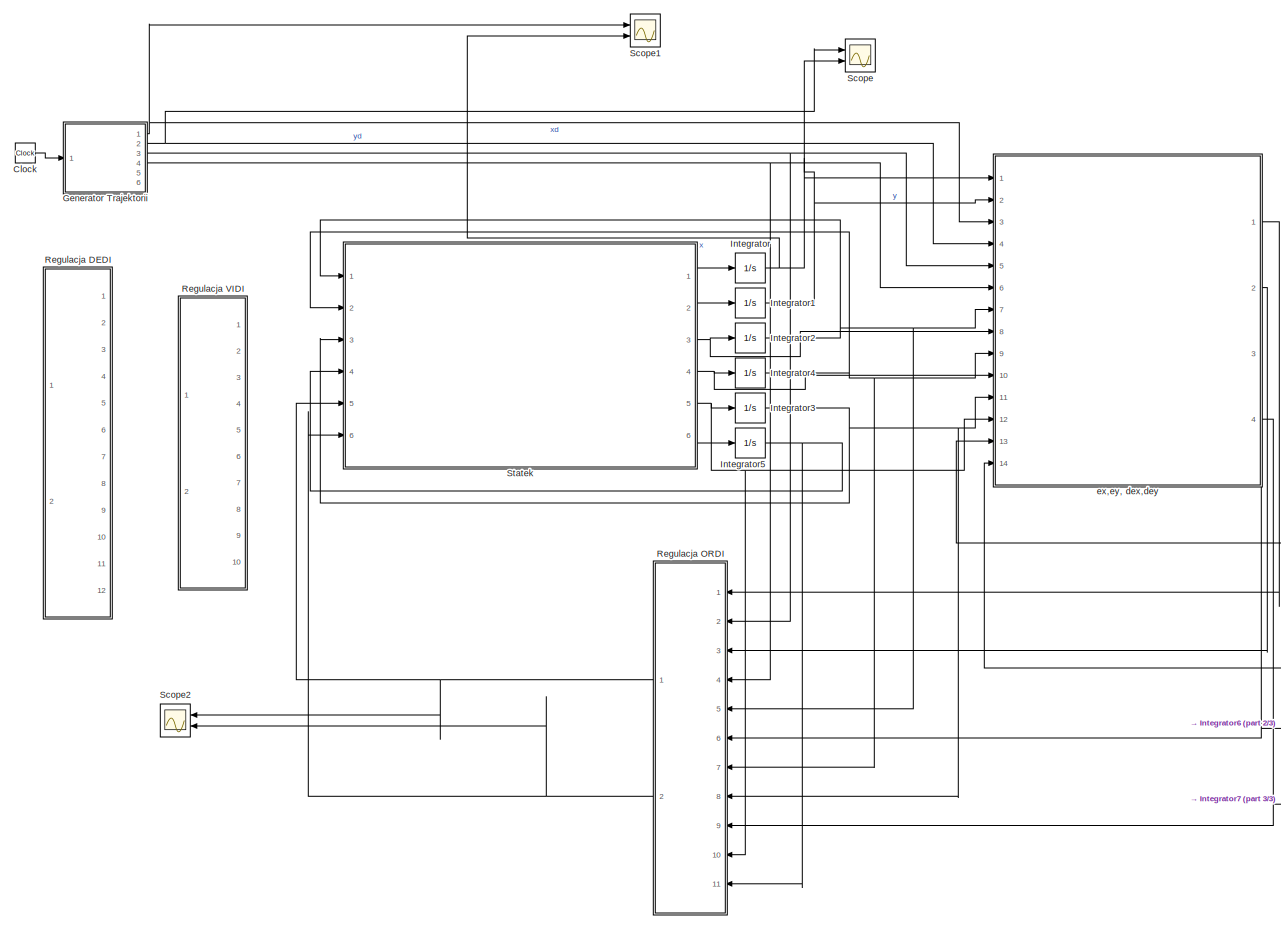
[diagram: root canvas - part 1/3, most of the canvas]
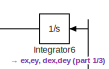
[diagram: root canvas - part 2/3, middle right region]
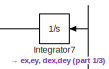
[diagram: root canvas - part 3/3, bottom right region]
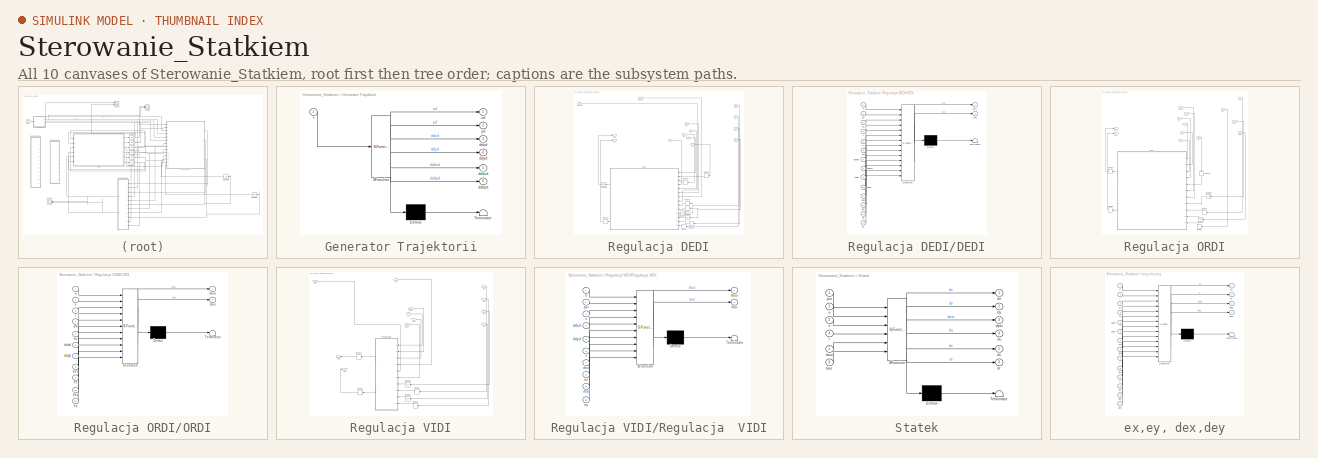
[diagram: thumbnail index - all 10 canvases of the model, root first then tree order]
MODEL Sterowanie_Statkiem
KIND model
BLOCK [Clock] Clock
  SID = 28
BLOCK [SubSystem] Generator Trajektorii
  ErrorFcn = Stateflow.Translate.translate
  PermitHierarchicalResolution = ExplicitOnly
  Ports = [1, 6]
  RequestExecContextInheritance = off
  SFBlockType = MATLAB Function
  SID = 27
  TreatAsAtomicUnit = on
BLOCK [Demux] Generator Trajektorii/ Demux 
  Outputs = 1
  Ports = [1, 1]
  SID = 27::20
BLOCK [S-Function] Generator Trajektorii/ SFunction 
  EnableBusSupport = on
  FunctionName = sf_sfun
  PortCounts = [1 7]
  Ports = [1, 7]
  SFcnIsStateOwnerBlock = off
  SFunctionDeploymentMode = off
  SID = 27::19
  Tag = Stateflow S-Function 1
BLOCK [Terminator] Generator Trajektorii/ Terminator 
  SID = 27::21
BLOCK [Outport] Generator Trajektorii/dddxd
  IconDisplay = Port number
  Port = 5
  SID = 27::27
BLOCK [Outport] Generator Trajektorii/dddyd
  IconDisplay = Port number
  Port = 6
  SID = 27::28
BLOCK [Outport] Generator Trajektorii/ddxd
  IconDisplay = Port number
  Port = 3
  SID = 27::23
BLOCK [Outport] Generator Trajektorii/ddyd
  IconDisplay = Port number
  Port = 4
  SID = 27::24
BLOCK [Inport] Generator Trajektorii/t
  IconDisplay = Port number
  SID = 27::1
BLOCK [Outport] Generator Trajektorii/xd
  IconDisplay = Port number
  SID = 27::5
BLOCK [Outport] Generator Trajektorii/yd
  IconDisplay = Port number
  Port = 2
  SID = 27::22
BLOCK [Integrator] Integrator
  InitialCondition = -0.01
  Ports = [1, 1]
  SID = 16
BLOCK [Integrator] Integrator1
  InitialCondition = 1.01
  Ports = [1, 1]
  SID = 19
BLOCK [Integrator] Integrator2
  InitialCondition = 0.01
  Ports = [1, 1]
  SID = 20
BLOCK [Integrator] Integrator3
  InitialCondition = 0.1
  Ports = [1, 1]
  SID = 21
BLOCK [Integrator] Integrator4
  InitialCondition = .1
  Ports = [1, 1]
  SID = 22
BLOCK [Integrator] Integrator5
  InitialCondition = 0.1
  Ports = [1, 1]
  SID = 23
BLOCK [Integrator] Integrator6
  Ports = [1, 1]
  SID = 149
BLOCK [Integrator] Integrator7
  Ports = [1, 1]
  SID = 150
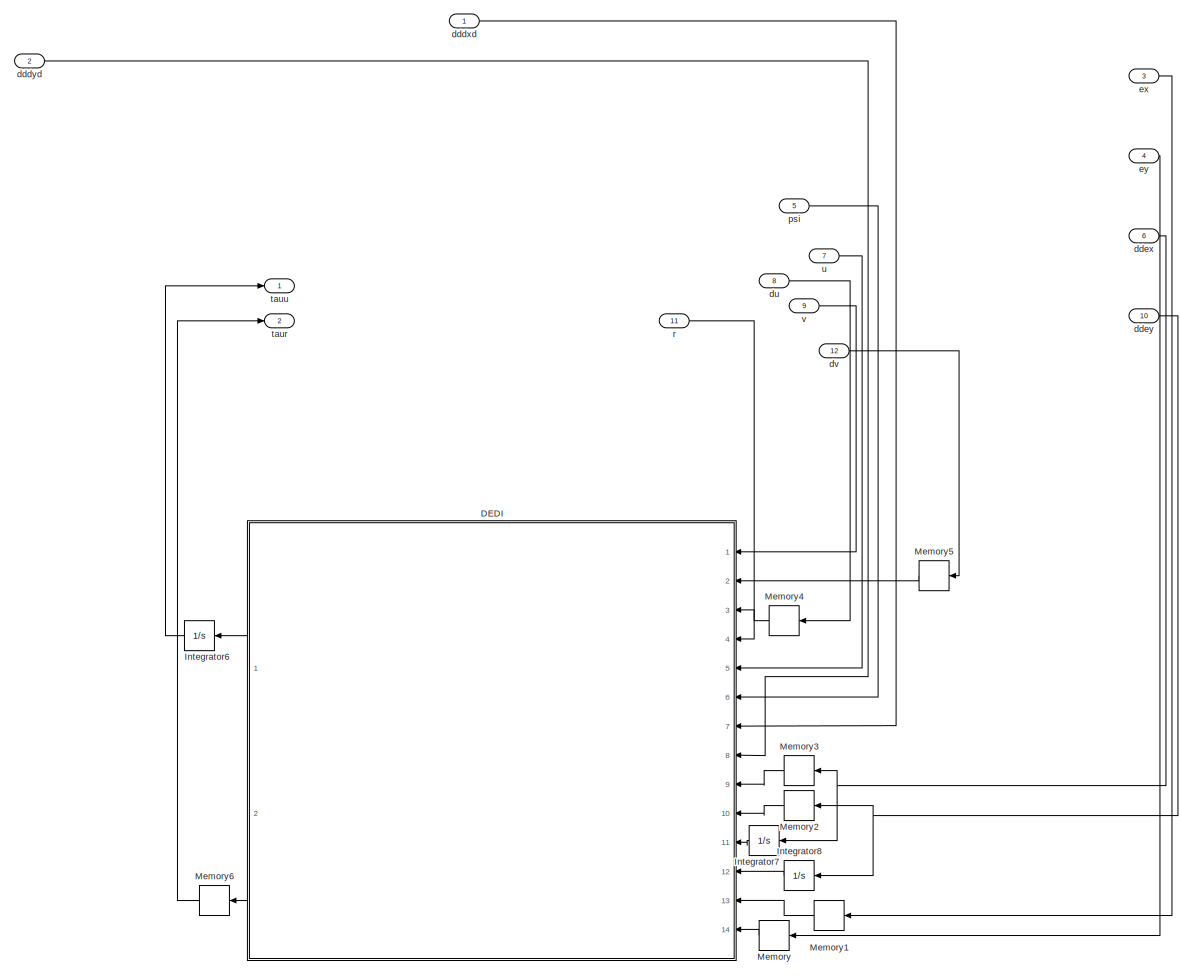
[diagram: Regulacja DEDI - part 1/1, most of the canvas]
BLOCK [SubSystem] Regulacja DEDI
  Commented = on
  Ports = [12, 2]
  RequestExecContextInheritance = off
  SID = 69
BLOCK [SubSystem] Regulacja DEDI/DEDI
  ErrorFcn = Stateflow.Translate.translate
  PermitHierarchicalResolution = ExplicitOnly
  Ports = [14, 2]
  RequestExecContextInheritance = off
  SFBlockType = MATLAB Function
  SID = 36
  TreatAsAtomicUnit = on
BLOCK [Demux] Regulacja DEDI/DEDI/ Demux 
  Outputs = 1
  Ports = [1, 1]
  SID = 36::20
BLOCK [S-Function] Regulacja DEDI/DEDI/ SFunction 
  EnableBusSupport = on
  FunctionName = sf_sfun
  PortCounts = [14 3]
  Ports = [14, 3]
  SFcnIsStateOwnerBlock = off
  SFunctionDeploymentMode = off
  SID = 36::19
  Tag = Stateflow S-Function 4
BLOCK [Terminator] Regulacja DEDI/DEDI/ Terminator 
  SID = 36::21
BLOCK [Inport] Regulacja DEDI/DEDI/dddxd
  IconDisplay = Port number
  Port = 7
  SID = 36::27
BLOCK [Inport] Regulacja DEDI/DEDI/dddyd
  IconDisplay = Port number
  Port = 8
  SID = 36::28
BLOCK [Inport] Regulacja DEDI/DEDI/ddex
  IconDisplay = Port number
  Port = 9
  SID = 36::29
BLOCK [Inport] Regulacja DEDI/DEDI/ddey
  IconDisplay = Port number
  Port = 10
  SID = 36::30
BLOCK [Inport] Regulacja DEDI/DEDI/dex
  IconDisplay = Port number
  Port = 11
  SID = 36::31
BLOCK [Inport] Regulacja DEDI/DEDI/dey
  IconDisplay = Port number
  Port = 12
  SID = 36::32
BLOCK [Inport] Regulacja DEDI/DEDI/du
  IconDisplay = Port number
  Port = 3
  SID = 36::25
BLOCK [Inport] Regulacja DEDI/DEDI/dv
  IconDisplay = Port number
  Port = 2
  SID = 36::24
BLOCK [Inport] Regulacja DEDI/DEDI/ex
  IconDisplay = Port number
  Port = 13
  SID = 36::33
BLOCK [Inport] Regulacja DEDI/DEDI/ey
  IconDisplay = Port number
  Port = 14
  SID = 36::34
BLOCK [Outport] Regulacja DEDI/DEDI/ksiu
  IconDisplay = Port number
  SID = 36::5
BLOCK [Inport] Regulacja DEDI/DEDI/psi
  IconDisplay = Port number
  Port = 6
  SID = 36::26
BLOCK [Inport] Regulacja DEDI/DEDI/r
  IconDisplay = Port number
  Port = 4
  SID = 36::23
BLOCK [Outport] Regulacja DEDI/DEDI/taur
  IconDisplay = Port number
  Port = 2
  SID = 36::35
BLOCK [Inport] Regulacja DEDI/DEDI/u
  IconDisplay = Port number
  Port = 5
  SID = 36::1
BLOCK [Inport] Regulacja DEDI/DEDI/v
  IconDisplay = Port number
  SID = 36::22
BLOCK [Integrator] Regulacja DEDI/Integrator6
  Ports = [1, 1]
  SID = 37
BLOCK [Integrator] Regulacja DEDI/Integrator7
  Ports = [1, 1]
  SID = 38
BLOCK [Integrator] Regulacja DEDI/Integrator8
  Ports = [1, 1]
  SID = 39
BLOCK [Memory] Regulacja DEDI/Memory
  SID = 41
BLOCK [Memory] Regulacja DEDI/Memory1
  SID = 42
BLOCK [Memory] Regulacja DEDI/Memory2
  SID = 43
BLOCK [Memory] Regulacja DEDI/Memory3
  SID = 44
BLOCK [Memory] Regulacja DEDI/Memory4
  SID = 45
BLOCK [Memory] Regulacja DEDI/Memory5
  SID = 46
BLOCK [Memory] Regulacja DEDI/Memory6
  SID = 47
BLOCK [Inport] Regulacja DEDI/dddxd
  IconDisplay = Port number
  SID = 70
BLOCK [Inport] Regulacja DEDI/dddyd
  IconDisplay = Port number
  Port = 2
  SID = 71
BLOCK [Inport] Regulacja DEDI/ddex
  IconDisplay = Port number
  Port = 6
  SID = 75
BLOCK [Inport] Regulacja DEDI/ddey
  IconDisplay = Port number
  Port = 10
  SID = 79
BLOCK [Inport] Regulacja DEDI/du
  IconDisplay = Port number
  Port = 8
  SID = 77
BLOCK [Inport] Regulacja DEDI/dv
  IconDisplay = Port number
  Port = 12
  SID = 81
BLOCK [Inport] Regulacja DEDI/ex
  IconDisplay = Port number
  Port = 3
  SID = 72
BLOCK [Inport] Regulacja DEDI/ey
  IconDisplay = Port number
  Port = 4
  SID = 73
BLOCK [Inport] Regulacja DEDI/psi
  IconDisplay = Port number
  Port = 5
  SID = 74
BLOCK [Inport] Regulacja DEDI/r
  IconDisplay = Port number
  Port = 11
  SID = 80
BLOCK [Outport] Regulacja DEDI/taur
  IconDisplay = Port number
  Port = 2
  SID = 83
BLOCK [Outport] Regulacja DEDI/tauu
  IconDisplay = Port number
  SID = 82
BLOCK [Inport] Regulacja DEDI/u
  IconDisplay = Port number
  Port = 7
  SID = 76
BLOCK [Inport] Regulacja DEDI/v
  IconDisplay = Port number
  Port = 9
  SID = 78
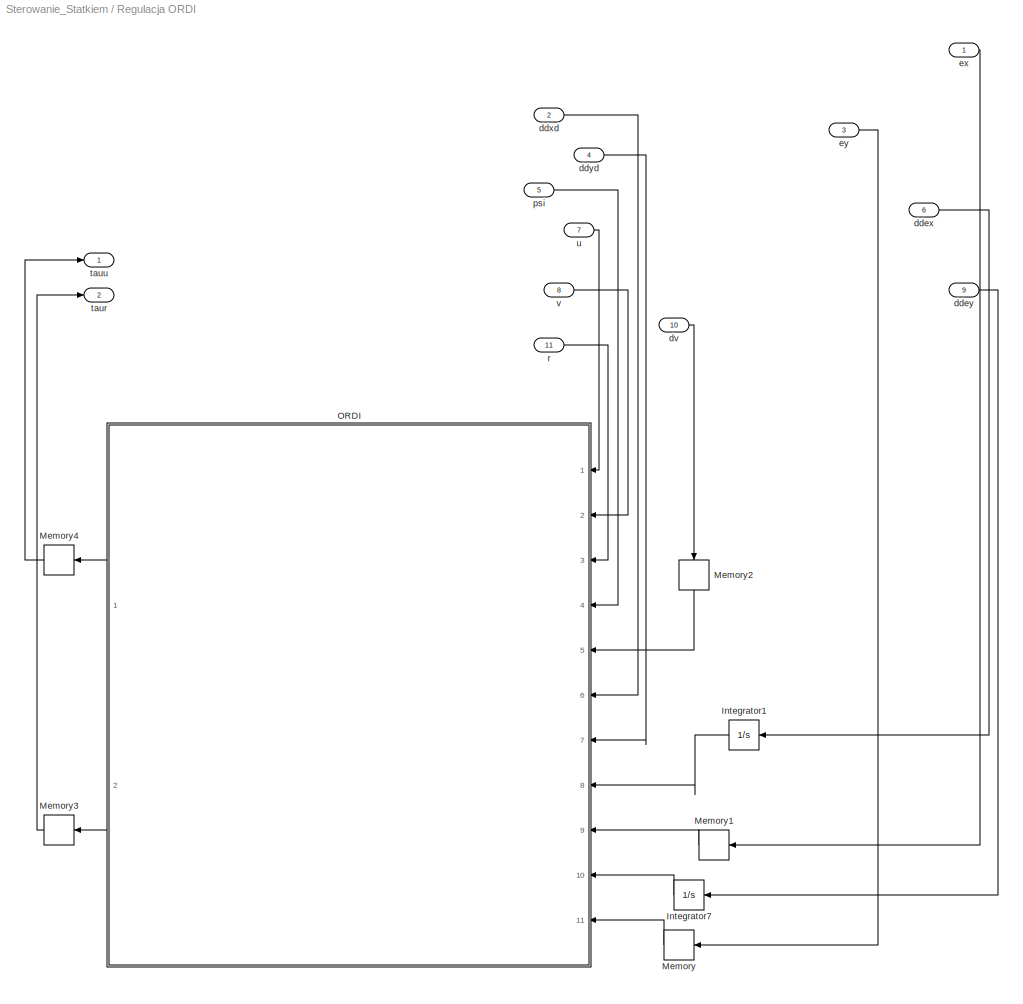
BLOCK [SubSystem] Regulacja ORDI
  Ports = [11, 2]
  RequestExecContextInheritance = off
  SID = 112
BLOCK [Integrator] Regulacja ORDI/Integrator1
  Ports = [1, 1]
  SID = 126
BLOCK [Integrator] Regulacja ORDI/Integrator7
  Ports = [1, 1]
  SID = 85
BLOCK [Memory] Regulacja ORDI/Memory
  SID = 86
BLOCK [Memory] Regulacja ORDI/Memory1
  SID = 110
BLOCK [Memory] Regulacja ORDI/Memory2
  SID = 89
BLOCK [Memory] Regulacja ORDI/Memory3
  SID = 90
BLOCK [Memory] Regulacja ORDI/Memory4
  SID = 91
BLOCK [SubSystem] Regulacja ORDI/ORDI
  ErrorFcn = Stateflow.Translate.translate
  PermitHierarchicalResolution = ExplicitOnly
  Ports = [11, 2]
  RequestExecContextInheritance = off
  SFBlockType = MATLAB Function
  SID = 68
  TreatAsAtomicUnit = on
BLOCK [Demux] Regulacja ORDI/ORDI/ Demux 
  Outputs = 1
  Ports = [1, 1]
  SID = 68::20
BLOCK [S-Function] Regulacja ORDI/ORDI/ SFunction 
  EnableBusSupport = on
  FunctionName = sf_sfun
  PortCounts = [11 3]
  Ports = [11, 3]
  SFcnIsStateOwnerBlock = off
  SFunctionDeploymentMode = off
  SID = 68::19
  Tag = Stateflow S-Function 6
BLOCK [Terminator] Regulacja ORDI/ORDI/ Terminator 
  SID = 68::21
BLOCK [Inport] Regulacja ORDI/ORDI/ddxd
  IconDisplay = Port number
  Port = 6
  SID = 68::26
BLOCK [Inport] Regulacja ORDI/ORDI/ddyd
  IconDisplay = Port number
  Port = 7
  SID = 68::27
BLOCK [Inport] Regulacja ORDI/ORDI/dex
  IconDisplay = Port number
  Port = 8
  SID = 68::28
BLOCK [Inport] Regulacja ORDI/ORDI/dey
  IconDisplay = Port number
  Port = 10
  SID = 68::30
BLOCK [Inport] Regulacja ORDI/ORDI/dv
  IconDisplay = Port number
  Port = 5
  SID = 68::25
BLOCK [Inport] Regulacja ORDI/ORDI/ex
  IconDisplay = Port number
  Port = 9
  SID = 68::29
BLOCK [Inport] Regulacja ORDI/ORDI/ey
  IconDisplay = Port number
  Port = 11
  SID = 68::31
BLOCK [Inport] Regulacja ORDI/ORDI/psi
  IconDisplay = Port number
  Port = 4
  SID = 68::24
BLOCK [Inport] Regulacja ORDI/ORDI/r
  IconDisplay = Port number
  Port = 3
  SID = 68::23
BLOCK [Outport] Regulacja ORDI/ORDI/taur
  IconDisplay = Port number
  Port = 2
  SID = 68::32
BLOCK [Outport] Regulacja ORDI/ORDI/tauu
  IconDisplay = Port number
  SID = 68::5
BLOCK [Inport] Regulacja ORDI/ORDI/u
  IconDisplay = Port number
  SID = 68::1
BLOCK [Inport] Regulacja ORDI/ORDI/v
  IconDisplay = Port number
  Port = 2
  SID = 68::22
BLOCK [Inport] Regulacja ORDI/ddex
  IconDisplay = Port number
  Port = 6
  SID = 118
BLOCK [Inport] Regulacja ORDI/ddey
  IconDisplay = Port number
  Port = 9
  SID = 121
BLOCK [Inport] Regulacja ORDI/ddxd
  IconDisplay = Port number
  Port = 2
  SID = 114
BLOCK [Inport] Regulacja ORDI/ddyd
  IconDisplay = Port number
  Port = 4
  SID = 116
BLOCK [Inport] Regulacja ORDI/dv
  IconDisplay = Port number
  Port = 10
  SID = 122
BLOCK [Inport] Regulacja ORDI/ex
  IconDisplay = Port number
  SID = 113
BLOCK [Inport] Regulacja ORDI/ey
  IconDisplay = Port number
  Port = 3
  SID = 115
BLOCK [Inport] Regulacja ORDI/psi
  IconDisplay = Port number
  Port = 5
  SID = 117
BLOCK [Inport] Regulacja ORDI/r
  IconDisplay = Port number
  Port = 11
  SID = 123
BLOCK [Outport] Regulacja ORDI/taur
  IconDisplay = Port number
  Port = 2
  SID = 125
BLOCK [Outport] Regulacja ORDI/tauu
  IconDisplay = Port number
  SID = 124
BLOCK [Inport] Regulacja ORDI/u
  IconDisplay = Port number
  Port = 7
  SID = 119
BLOCK [Inport] Regulacja ORDI/v
  IconDisplay = Port number
  Port = 8
  SID = 120
BLOCK [SubSystem] Regulacja VIDI
  Commented = on
  Ports = [10, 2]
  RequestExecContextInheritance = off
  SID = 136
BLOCK [Inport] Regulacja VIDI/In1
  IconDisplay = Port number
  SID = 137
BLOCK [Inport] Regulacja VIDI/In10
  IconDisplay = Port number
  Port = 10
  SID = 146
BLOCK [Inport] Regulacja VIDI/In2
  IconDisplay = Port number
  Port = 2
  SID = 138
BLOCK [Inport] Regulacja VIDI/In3
  IconDisplay = Port number
  Port = 3
  SID = 139
BLOCK [Inport] Regulacja VIDI/In4
  IconDisplay = Port number
  Port = 4
  SID = 140
BLOCK [Inport] Regulacja VIDI/In5
  IconDisplay = Port number
  Port = 5
  SID = 141
BLOCK [Inport] Regulacja VIDI/In6
  IconDisplay = Port number
  Port = 6
  SID = 142
BLOCK [Inport] Regulacja VIDI/In7
  IconDisplay = Port number
  Port = 7
  SID = 143
BLOCK [Inport] Regulacja VIDI/In8
  IconDisplay = Port number
  Port = 8
  SID = 144
BLOCK [Inport] Regulacja VIDI/In9
  IconDisplay = Port number
  Port = 9
  SID = 145
BLOCK [Integrator] Regulacja VIDI/Integrator6
  Ports = [1, 1]
  SID = 128
BLOCK [Integrator] Regulacja VIDI/Integrator7
  Ports = [1, 1]
  SID = 129
BLOCK [Memory] Regulacja VIDI/Memory
  SID = 130
BLOCK [Memory] Regulacja VIDI/Memory1
  SID = 132
BLOCK [Memory] Regulacja VIDI/Memory2
  SID = 133
BLOCK [Memory] Regulacja VIDI/Memory3
  SID = 134
BLOCK [Outport] Regulacja VIDI/Out1
  IconDisplay = Port number
  SID = 147
BLOCK [Outport] Regulacja VIDI/Out2
  IconDisplay = Port number
  Port = 2
  SID = 148
BLOCK [SubSystem] Regulacja VIDI/Regulacja  VIDI
  ErrorFcn = Stateflow.Translate.translate
  PermitHierarchicalResolution = ExplicitOnly
  Ports = [10, 2]
  RequestExecContextInheritance = off
  SFBlockType = MATLAB Function
  SID = 127
  TreatAsAtomicUnit = on
BLOCK [Demux] Regulacja VIDI/Regulacja  VIDI/ Demux 
  Outputs = 1
  Ports = [1, 1]
  SID = 127::20
BLOCK [S-Function] Regulacja VIDI/Regulacja  VIDI/ SFunction 
  EnableBusSupport = on
  FunctionName = sf_sfun
  PortCounts = [10 3]
  Ports = [10, 3]
  SFcnIsStateOwnerBlock = off
  SFunctionDeploymentMode = off
  SID = 127::19
  Tag = Stateflow S-Function 5
BLOCK [Terminator] Regulacja VIDI/Regulacja  VIDI/ Terminator 
  SID = 127::21
BLOCK [Inport] Regulacja VIDI/Regulacja  VIDI/ddxd
  IconDisplay = Port number
  Port = 4
  SID = 127::24
BLOCK [Inport] Regulacja VIDI/Regulacja  VIDI/ddyd
  IconDisplay = Port number
  Port = 5
  SID = 127::25
BLOCK [Inport] Regulacja VIDI/Regulacja  VIDI/dex
  IconDisplay = Port number
  Port = 7
  SID = 127::27
BLOCK [Inport] Regulacja VIDI/Regulacja  VIDI/dey
  IconDisplay = Port number
  Port = 9
  SID = 127::29
BLOCK [Inport] Regulacja VIDI/Regulacja  VIDI/ex
  IconDisplay = Port number
  Port = 8
  SID = 127::28
BLOCK [Inport] Regulacja VIDI/Regulacja  VIDI/ey
  IconDisplay = Port number
  Port = 10
  SID = 127::30
BLOCK [Inport] Regulacja VIDI/Regulacja  VIDI/psi
  IconDisplay = Port number
  Port = 2
  SID = 127::22
BLOCK [Inport] Regulacja VIDI/Regulacja  VIDI/r
  IconDisplay = Port number
  Port = 6
  SID = 127::26
BLOCK [Outport] Regulacja VIDI/Regulacja  VIDI/taur
  IconDisplay = Port number
  Port = 2
  SID = 127::31
BLOCK [Outport] Regulacja VIDI/Regulacja  VIDI/tauu
  IconDisplay = Port number
  SID = 127::5
BLOCK [Inport] Regulacja VIDI/Regulacja  VIDI/u
  IconDisplay = Port number
  SID = 127::1
BLOCK [Inport] Regulacja VIDI/Regulacja  VIDI/v
  IconDisplay = Port number
  Port = 3
  SID = 127::23
BLOCK [Scope] Scope
  Floating = off
  NumInputPorts = 2
  Ports = [2]
  SID = 40
  ScopeSpecificationString = Simulink.scopes.TimeScopeBlockCfg('CurrentConfiguration', extmgr.ConfigurationSet(extmgr.Configuration('Core','General UI',true),extmgr.Configuration('Core','Source UI',true),extmgr.Configuration('Sources','WiredSimulink',true),extmgr.Configuration('Visuals','Time Domain',true,'SerializedDisplays',{struct('MinYLimReal','-1.2628','MaxYLimReal','1.3652','YLabelReal','','MinYLimMag','0.00000','MaxYLi...<+1399ch>
BLOCK [Scope] Scope1
  Floating = off
  NumInputPorts = 2
  Ports = [2]
  SID = 51
  ScopeSpecificationString = Simulink.scopes.TimeScopeBlockCfg('CurrentConfiguration', extmgr.ConfigurationSet(extmgr.Configuration('Core','General UI',true),extmgr.Configuration('Core','Source UI',true),extmgr.Configuration('Sources','WiredSimulink',true,'DataLoggingVariableName','ScopeData1'),extmgr.Configuration('Visuals','Time Domain',true,'SerializedDisplays',{struct('MinYLimReal','-2.26474','MaxYLimReal','1.36275','YLab...<+1444ch>
BLOCK [Scope] Scope2
  Floating = off
  NumInputPorts = 2
  Ports = [2]
  SID = 135
  ScopeSpecificationString = Simulink.scopes.TimeScopeBlockCfg('CurrentConfiguration', extmgr.ConfigurationSet(extmgr.Configuration('Core','General UI',true),extmgr.Configuration('Core','Source UI',true),extmgr.Configuration('Sources','WiredSimulink',true,'DataLoggingVariableName','ScopeData1'),extmgr.Configuration('Visuals','Time Domain',true,'SerializedDisplays',{struct('MinYLimReal','-5.40902','MaxYLimReal','5.35465','YLab...<+1473ch>
BLOCK [SubSystem] Statek
  ErrorFcn = Stateflow.Translate.translate
  PermitHierarchicalResolution = ExplicitOnly
  Ports = [6, 6]
  RequestExecContextInheritance = off
  SFBlockType = MATLAB Function
  SID = 15
  TreatAsAtomicUnit = on
BLOCK [Demux] Statek/ Demux 
  Outputs = 1
  Ports = [1, 1]
  SID = 15::20
BLOCK [S-Function] Statek/ SFunction 
  EnableBusSupport = on
  FunctionName = sf_sfun
  PortCounts = [6 7]
  Ports = [6, 7]
  SFcnIsStateOwnerBlock = off
  SFunctionDeploymentMode = off
  SID = 15::19
  Tag = Stateflow S-Function 2
BLOCK [Terminator] Statek/ Terminator 
  SID = 15::21
BLOCK [Outport] Statek/dpsi
  IconDisplay = Port number
  Port = 3
  SID = 15::28
BLOCK [Outport] Statek/dr
  IconDisplay = Port number
  Port = 6
  SID = 15::34
BLOCK [Outport] Statek/du
  IconDisplay = Port number
  Port = 4
  SID = 15::32
BLOCK [Outport] Statek/dv
  IconDisplay = Port number
  Port = 5
  SID = 15::33
BLOCK [Outport] Statek/dx
  IconDisplay = Port number
  SID = 15::5
BLOCK [Outport] Statek/dy
  IconDisplay = Port number
  Port = 2
  SID = 15::27
BLOCK [Inport] Statek/psi
  IconDisplay = Port number
  SID = 15::22
BLOCK [Inport] Statek/r
  IconDisplay = Port number
  Port = 4
  SID = 15::23
BLOCK [Inport] Statek/taur
  IconDisplay = Port number
  Port = 6
  SID = 15::36
BLOCK [Inport] Statek/tauu
  IconDisplay = Port number
  Port = 5
  SID = 15::35
BLOCK [Inport] Statek/u
  IconDisplay = Port number
  Port = 2
  SID = 15::1
BLOCK [Inport] Statek/v
  IconDisplay = Port number
  Port = 3
  SID = 15::24
BLOCK [SubSystem] ex,ey, dex,dey
  ErrorFcn = Stateflow.Translate.translate
  PermitHierarchicalResolution = ExplicitOnly
  Ports = [14, 4]
  RequestExecContextInheritance = off
  SFBlockType = MATLAB Function
  SID = 30
  TreatAsAtomicUnit = on
BLOCK [Demux] ex,ey, dex,dey/ Demux 
  Outputs = 1
  Ports = [1, 1]
  SID = 30::20
BLOCK [S-Function] ex,ey, dex,dey/ SFunction 
  EnableBusSupport = on
  FunctionName = sf_sfun
  PortCounts = [14 5]
  Ports = [14, 5]
  SFcnIsStateOwnerBlock = off
  SFunctionDeploymentMode = off
  SID = 30::19
  Tag = Stateflow S-Function 3
BLOCK [Terminator] ex,ey, dex,dey/ Terminator 
  SID = 30::21
BLOCK [Outport] ex,ey, dex,dey/ddex
  IconDisplay = Port number
  Port = 3
  SID = 30::34
BLOCK [Outport] ex,ey, dex,dey/ddey
  IconDisplay = Port number
  Port = 4
  SID = 30::35
BLOCK [Inport] ex,ey, dex,dey/ddxd
  IconDisplay = Port number
  Port = 5
  SID = 30::26
BLOCK [Inport] ex,ey, dex,dey/ddyd
  IconDisplay = Port number
  Port = 6
  SID = 30::27
BLOCK [Inport] ex,ey, dex,dey/dex
  IconDisplay = Port number
  Port = 13
  SID = 30::37
BLOCK [Inport] ex,ey, dex,dey/dey
  IconDisplay = Port number
  Port = 14
  SID = 30::38
BLOCK [Inport] ex,ey, dex,dey/dpsi
  IconDisplay = Port number
  Port = 8
  SID = 30::1
BLOCK [Inport] ex,ey, dex,dey/du
  IconDisplay = Port number
  Port = 10
  SID = 30::28
BLOCK [Inport] ex,ey, dex,dey/dv
  IconDisplay = Port number
  Port = 12
  SID = 30::29
BLOCK [Outport] ex,ey, dex,dey/ex
  IconDisplay = Port number
  SID = 30::5
BLOCK [Outport] ex,ey, dex,dey/ey
  IconDisplay = Port number
  Port = 2
  SID = 30::33
BLOCK [Inport] ex,ey, dex,dey/psi
  IconDisplay = Port number
  Port = 7
  SID = 30::32
BLOCK [Inport] ex,ey, dex,dey/u
  IconDisplay = Port number
  Port = 9
  SID = 30::36
BLOCK [Inport] ex,ey, dex,dey/v
  IconDisplay = Port number
  Port = 11
  SID = 30::31
BLOCK [Inport] ex,ey, dex,dey/x
  IconDisplay = Port number
  SID = 30::22
BLOCK [Inport] ex,ey, dex,dey/xd
  IconDisplay = Port number
  Port = 3
  SID = 30::24
BLOCK [Inport] ex,ey, dex,dey/y
  IconDisplay = Port number
  Port = 2
  SID = 30::23
BLOCK [Inport] ex,ey, dex,dey/yd
  IconDisplay = Port number
  Port = 4
  SID = 30::25
LINE Clock:1 -> Generator Trajektorii:1
LINE Generator Trajektorii/ Demux :1 -> Generator Trajektorii/ Terminator :1
LINE Generator Trajektorii/ SFunction :1 -> Generator Trajektorii/ Demux :1
LINE Generator Trajektorii/ SFunction :2 -> Generator Trajektorii/xd:1
LINE Generator Trajektorii/ SFunction :3 -> Generator Trajektorii/yd:1
LINE Generator Trajektorii/ SFunction :4 -> Generator Trajektorii/ddxd:1
LINE Generator Trajektorii/ SFunction :5 -> Generator Trajektorii/ddyd:1
LINE Generator Trajektorii/ SFunction :6 -> Generator Trajektorii/dddxd:1
LINE Generator Trajektorii/ SFunction :7 -> Generator Trajektorii/dddyd:1
LINE Generator Trajektorii/t:1 -> Generator Trajektorii/ SFunction :1
NET Generator Trajektorii:1 -> Scope1:1, ex,ey, dex,dey:3
NET Generator Trajektorii:2 -> Scope:1, ex,ey, dex,dey:4
NET Generator Trajektorii:3 -> Regulacja ORDI:2, ex,ey, dex,dey:5
NET Generator Trajektorii:4 -> Regulacja ORDI:4, ex,ey, dex,dey:6
NET Integrator1:1 -> Scope:2, ex,ey, dex,dey:2
NET Integrator2:1 -> Regulacja ORDI:5, Statek:1, ex,ey, dex,dey:7
NET Integrator3:1 -> Regulacja ORDI:8, Statek:3, ex,ey, dex,dey:11
NET Integrator4:1 -> Regulacja ORDI:7, Statek:2, ex,ey, dex,dey:9
NET Integrator5:1 -> Regulacja ORDI:11, Statek:4
LINE Integrator6:1 -> ex,ey, dex,dey:13
LINE Integrator7:1 -> ex,ey, dex,dey:14
NET Integrator:1 -> Scope1:2, ex,ey, dex,dey:1
LINE Regulacja DEDI/DEDI/ Demux :1 -> Regulacja DEDI/DEDI/ Terminator :1
LINE Regulacja DEDI/DEDI/ SFunction :1 -> Regulacja DEDI/DEDI/ Demux :1
LINE Regulacja DEDI/DEDI/ SFunction :2 -> Regulacja DEDI/DEDI/ksiu:1
LINE Regulacja DEDI/DEDI/ SFunction :3 -> Regulacja DEDI/DEDI/taur:1
LINE Regulacja DEDI/DEDI/dddxd:1 -> Regulacja DEDI/DEDI/ SFunction :7
LINE Regulacja DEDI/DEDI/dddyd:1 -> Regulacja DEDI/DEDI/ SFunction :8
LINE Regulacja DEDI/DEDI/ddex:1 -> Regulacja DEDI/DEDI/ SFunction :9
LINE Regulacja DEDI/DEDI/ddey:1 -> Regulacja DEDI/DEDI/ SFunction :10
LINE Regulacja DEDI/DEDI/dex:1 -> Regulacja DEDI/DEDI/ SFunction :11
LINE Regulacja DEDI/DEDI/dey:1 -> Regulacja DEDI/DEDI/ SFunction :12
LINE Regulacja DEDI/DEDI/du:1 -> Regulacja DEDI/DEDI/ SFunction :3
LINE Regulacja DEDI/DEDI/dv:1 -> Regulacja DEDI/DEDI/ SFunction :2
LINE Regulacja DEDI/DEDI/ex:1 -> Regulacja DEDI/DEDI/ SFunction :13
LINE Regulacja DEDI/DEDI/ey:1 -> Regulacja DEDI/DEDI/ SFunction :14
LINE Regulacja DEDI/DEDI/psi:1 -> Regulacja DEDI/DEDI/ SFunction :6
LINE Regulacja DEDI/DEDI/r:1 -> Regulacja DEDI/DEDI/ SFunction :4
LINE Regulacja DEDI/DEDI/u:1 -> Regulacja DEDI/DEDI/ SFunction :5
LINE Regulacja DEDI/DEDI/v:1 -> Regulacja DEDI/DEDI/ SFunction :1
LINE Regulacja DEDI/DEDI:1 -> Regulacja DEDI/Integrator6:1
LINE Regulacja DEDI/DEDI:2 -> Regulacja DEDI/Memory6:1
LINE Regulacja DEDI/Integrator6:1 -> Regulacja DEDI/tauu:1
LINE Regulacja DEDI/Integrator7:1 -> Regulacja DEDI/DEDI:11
LINE Regulacja DEDI/Integrator8:1 -> Regulacja DEDI/DEDI:12
LINE Regulacja DEDI/Memory1:1 -> Regulacja DEDI/DEDI:13
LINE Regulacja DEDI/Memory2:1 -> Regulacja DEDI/DEDI:10
LINE Regulacja DEDI/Memory3:1 -> Regulacja DEDI/DEDI:9
LINE Regulacja DEDI/Memory4:1 -> Regulacja DEDI/DEDI:3
LINE Regulacja DEDI/Memory5:1 -> Regulacja DEDI/DEDI:2
LINE Regulacja DEDI/Memory6:1 -> Regulacja DEDI/taur:1
LINE Regulacja DEDI/Memory:1 -> Regulacja DEDI/DEDI:14
LINE Regulacja DEDI/dddxd:1 -> Regulacja DEDI/DEDI:7
LINE Regulacja DEDI/dddyd:1 -> Regulacja DEDI/DEDI:8
NET Regulacja DEDI/ddex:1 -> Regulacja DEDI/Integrator7:1, Regulacja DEDI/Memory3:1
NET Regulacja DEDI/ddey:1 -> Regulacja DEDI/Integrator8:1, Regulacja DEDI/Memory2:1
LINE Regulacja DEDI/du:1 -> Regulacja DEDI/Memory4:1
LINE Regulacja DEDI/dv:1 -> Regulacja DEDI/Memory5:1
LINE Regulacja DEDI/ex:1 -> Regulacja DEDI/Memory1:1
LINE Regulacja DEDI/ey:1 -> Regulacja DEDI/Memory:1
LINE Regulacja DEDI/psi:1 -> Regulacja DEDI/DEDI:6
LINE Regulacja DEDI/r:1 -> Regulacja DEDI/DEDI:4
LINE Regulacja DEDI/u:1 -> Regulacja DEDI/DEDI:5
LINE Regulacja DEDI/v:1 -> Regulacja DEDI/DEDI:1
LINE Regulacja ORDI/Integrator1:1 -> Regulacja ORDI/ORDI:8
LINE Regulacja ORDI/Integrator7:1 -> Regulacja ORDI/ORDI:10
LINE Regulacja ORDI/Memory1:1 -> Regulacja ORDI/ORDI:9
LINE Regulacja ORDI/Memory2:1 -> Regulacja ORDI/ORDI:5
LINE Regulacja ORDI/Memory3:1 -> Regulacja ORDI/taur:1
LINE Regulacja ORDI/Memory4:1 -> Regulacja ORDI/tauu:1
LINE Regulacja ORDI/Memory:1 -> Regulacja ORDI/ORDI:11
LINE Regulacja ORDI/ORDI/ Demux :1 -> Regulacja ORDI/ORDI/ Terminator :1
LINE Regulacja ORDI/ORDI/ SFunction :1 -> Regulacja ORDI/ORDI/ Demux :1
LINE Regulacja ORDI/ORDI/ SFunction :2 -> Regulacja ORDI/ORDI/tauu:1
LINE Regulacja ORDI/ORDI/ SFunction :3 -> Regulacja ORDI/ORDI/taur:1
LINE Regulacja ORDI/ORDI/ddxd:1 -> Regulacja ORDI/ORDI/ SFunction :6
LINE Regulacja ORDI/ORDI/ddyd:1 -> Regulacja ORDI/ORDI/ SFunction :7
LINE Regulacja ORDI/ORDI/dex:1 -> Regulacja ORDI/ORDI/ SFunction :8
LINE Regulacja ORDI/ORDI/dey:1 -> Regulacja ORDI/ORDI/ SFunction :10
LINE Regulacja ORDI/ORDI/dv:1 -> Regulacja ORDI/ORDI/ SFunction :5
LINE Regulacja ORDI/ORDI/ex:1 -> Regulacja ORDI/ORDI/ SFunction :9
LINE Regulacja ORDI/ORDI/ey:1 -> Regulacja ORDI/ORDI/ SFunction :11
LINE Regulacja ORDI/ORDI/psi:1 -> Regulacja ORDI/ORDI/ SFunction :4
LINE Regulacja ORDI/ORDI/r:1 -> Regulacja ORDI/ORDI/ SFunction :3
LINE Regulacja ORDI/ORDI/u:1 -> Regulacja ORDI/ORDI/ SFunction :1
LINE Regulacja ORDI/ORDI/v:1 -> Regulacja ORDI/ORDI/ SFunction :2
LINE Regulacja ORDI/ORDI:1 -> Regulacja ORDI/Memory4:1
LINE Regulacja ORDI/ORDI:2 -> Regulacja ORDI/Memory3:1
LINE Regulacja ORDI/ddex:1 -> Regulacja ORDI/Integrator1:1
LINE Regulacja ORDI/ddey:1 -> Regulacja ORDI/Integrator7:1
LINE Regulacja ORDI/ddxd:1 -> Regulacja ORDI/ORDI:6
LINE Regulacja ORDI/ddyd:1 -> Regulacja ORDI/ORDI:7
LINE Regulacja ORDI/dv:1 -> Regulacja ORDI/Memory2:1
LINE Regulacja ORDI/ex:1 -> Regulacja ORDI/Memory1:1
LINE Regulacja ORDI/ey:1 -> Regulacja ORDI/Memory:1
LINE Regulacja ORDI/psi:1 -> Regulacja ORDI/ORDI:4
LINE Regulacja ORDI/r:1 -> Regulacja ORDI/ORDI:3
LINE Regulacja ORDI/u:1 -> Regulacja ORDI/ORDI:1
LINE Regulacja ORDI/v:1 -> Regulacja ORDI/ORDI:2
NET Regulacja ORDI:1 -> Scope2:1, Statek:5
NET Regulacja ORDI:2 -> Scope2:2, Statek:6
LINE Regulacja VIDI/In10:1 -> Regulacja VIDI/Regulacja  VIDI:6
LINE Regulacja VIDI/In1:1 -> Regulacja VIDI/Regulacja  VIDI:4
LINE Regulacja VIDI/In2:1 -> Regulacja VIDI/Regulacja  VIDI:5
LINE Regulacja VIDI/In3:1 -> Regulacja VIDI/Memory:1
LINE Regulacja VIDI/In4:1 -> Regulacja VIDI/Memory1:1
LINE Regulacja VIDI/In5:1 -> Regulacja VIDI/Regulacja  VIDI:2
LINE Regulacja VIDI/In6:1 -> Regulacja VIDI/Integrator6:1
LINE Regulacja VIDI/In7:1 -> Regulacja VIDI/Regulacja  VIDI:1
LINE Regulacja VIDI/In8:1 -> Regulacja VIDI/Regulacja  VIDI:3
LINE Regulacja VIDI/In9:1 -> Regulacja VIDI/Integrator7:1
LINE Regulacja VIDI/Integrator6:1 -> Regulacja VIDI/Regulacja  VIDI:7
LINE Regulacja VIDI/Integrator7:1 -> Regulacja VIDI/Regulacja  VIDI:9
LINE Regulacja VIDI/Memory1:1 -> Regulacja VIDI/Regulacja  VIDI:10
LINE Regulacja VIDI/Memory2:1 -> Regulacja VIDI/Out2:1
LINE Regulacja VIDI/Memory3:1 -> Regulacja VIDI/Out1:1
LINE Regulacja VIDI/Memory:1 -> Regulacja VIDI/Regulacja  VIDI:8
LINE Regulacja VIDI/Regulacja  VIDI/ Demux :1 -> Regulacja VIDI/Regulacja  VIDI/ Terminator :1
LINE Regulacja VIDI/Regulacja  VIDI/ SFunction :1 -> Regulacja VIDI/Regulacja  VIDI/ Demux :1
LINE Regulacja VIDI/Regulacja  VIDI/ SFunction :2 -> Regulacja VIDI/Regulacja  VIDI/tauu:1
LINE Regulacja VIDI/Regulacja  VIDI/ SFunction :3 -> Regulacja VIDI/Regulacja  VIDI/taur:1
LINE Regulacja VIDI/Regulacja  VIDI/ddxd:1 -> Regulacja VIDI/Regulacja  VIDI/ SFunction :4
LINE Regulacja VIDI/Regulacja  VIDI/ddyd:1 -> Regulacja VIDI/Regulacja  VIDI/ SFunction :5
LINE Regulacja VIDI/Regulacja  VIDI/dex:1 -> Regulacja VIDI/Regulacja  VIDI/ SFunction :7
LINE Regulacja VIDI/Regulacja  VIDI/dey:1 -> Regulacja VIDI/Regulacja  VIDI/ SFunction :9
LINE Regulacja VIDI/Regulacja  VIDI/ex:1 -> Regulacja VIDI/Regulacja  VIDI/ SFunction :8
LINE Regulacja VIDI/Regulacja  VIDI/ey:1 -> Regulacja VIDI/Regulacja  VIDI/ SFunction :10
LINE Regulacja VIDI/Regulacja  VIDI/psi:1 -> Regulacja VIDI/Regulacja  VIDI/ SFunction :2
LINE Regulacja VIDI/Regulacja  VIDI/r:1 -> Regulacja VIDI/Regulacja  VIDI/ SFunction :6
LINE Regulacja VIDI/Regulacja  VIDI/u:1 -> Regulacja VIDI/Regulacja  VIDI/ SFunction :1
LINE Regulacja VIDI/Regulacja  VIDI/v:1 -> Regulacja VIDI/Regulacja  VIDI/ SFunction :3
LINE Regulacja VIDI/Regulacja  VIDI:1 -> Regulacja VIDI/Memory3:1
LINE Regulacja VIDI/Regulacja  VIDI:2 -> Regulacja VIDI/Memory2:1
LINE Statek/ Demux :1 -> Statek/ Terminator :1
LINE Statek/ SFunction :1 -> Statek/ Demux :1
LINE Statek/ SFunction :2 -> Statek/dx:1
LINE Statek/ SFunction :3 -> Statek/dy:1
LINE Statek/ SFunction :4 -> Statek/dpsi:1
LINE Statek/ SFunction :5 -> Statek/du:1
LINE Statek/ SFunction :6 -> Statek/dv:1
LINE Statek/ SFunction :7 -> Statek/dr:1
LINE Statek/psi:1 -> Statek/ SFunction :1
LINE Statek/r:1 -> Statek/ SFunction :4
LINE Statek/taur:1 -> Statek/ SFunction :6
LINE Statek/tauu:1 -> Statek/ SFunction :5
LINE Statek/u:1 -> Statek/ SFunction :2
LINE Statek/v:1 -> Statek/ SFunction :3
LINE Statek:1 -> Integrator:1
LINE Statek:2 -> Integrator1:1
NET Statek:3 -> Integrator2:1, ex,ey, dex,dey:8
NET Statek:4 -> Integrator4:1, ex,ey, dex,dey:10
NET Statek:5 -> Integrator3:1, Regulacja ORDI:10, ex,ey, dex,dey:12
LINE Statek:6 -> Integrator5:1
LINE ex,ey, dex,dey/ Demux :1 -> ex,ey, dex,dey/ Terminator :1
LINE ex,ey, dex,dey/ SFunction :1 -> ex,ey, dex,dey/ Demux :1
LINE ex,ey, dex,dey/ SFunction :2 -> ex,ey, dex,dey/ex:1
LINE ex,ey, dex,dey/ SFunction :3 -> ex,ey, dex,dey/ey:1
LINE ex,ey, dex,dey/ SFunction :4 -> ex,ey, dex,dey/ddex:1
LINE ex,ey, dex,dey/ SFunction :5 -> ex,ey, dex,dey/ddey:1
LINE ex,ey, dex,dey/ddxd:1 -> ex,ey, dex,dey/ SFunction :5
LINE ex,ey, dex,dey/ddyd:1 -> ex,ey, dex,dey/ SFunction :6
LINE ex,ey, dex,dey/dex:1 -> ex,ey, dex,dey/ SFunction :13
LINE ex,ey, dex,dey/dey:1 -> ex,ey, dex,dey/ SFunction :14
LINE ex,ey, dex,dey/dpsi:1 -> ex,ey, dex,dey/ SFunction :8
LINE ex,ey, dex,dey/du:1 -> ex,ey, dex,dey/ SFunction :10
LINE ex,ey, dex,dey/dv:1 -> ex,ey, dex,dey/ SFunction :12
LINE ex,ey, dex,dey/psi:1 -> ex,ey, dex,dey/ SFunction :7
LINE ex,ey, dex,dey/u:1 -> ex,ey, dex,dey/ SFunction :9
LINE ex,ey, dex,dey/v:1 -> ex,ey, dex,dey/ SFunction :11
LINE ex,ey, dex,dey/x:1 -> ex,ey, dex,dey/ SFunction :1
LINE ex,ey, dex,dey/xd:1 -> ex,ey, dex,dey/ SFunction :3
LINE ex,ey, dex,dey/y:1 -> ex,ey, dex,dey/ SFunction :2
LINE ex,ey, dex,dey/yd:1 -> ex,ey, dex,dey/ SFunction :4
LINE ex,ey, dex,dey:1 -> Regulacja ORDI:1
LINE ex,ey, dex,dey:2 -> Regulacja ORDI:3
NET ex,ey, dex,dey:3 -> Integrator6:1, Regulacja ORDI:6
NET ex,ey, dex,dey:4 -> Integrator7:1, Regulacja ORDI:9
note: NET lines group one-source signal fan-out (src -> all destinations, sorted); 1:1 wires keep LINE
CHART Generator Trajektorii states=1 transitions=1
  STATE_LABEL 'eML_blk_kernel()'
CHART Statek states=1 transitions=1
  STATE_LABEL 'eML_blk_kernel()'
CHART ex,ey, dex,dey states=1 transitions=1
  STATE_LABEL 'eML_blk_kernel()'
CHART Regulacja DEDI/DEDI states=1 transitions=1
  STATE_LABEL 'eML_blk_kernel()'
CHART Regulacja VIDI/Regulacja  VIDI states=1 transitions=1
  STATE_LABEL 'eML_blk_kernel()'
CHART Regulacja ORDI/ORDI states=1 transitions=1
  STATE_LABEL 'eML_blk_kernel()'
